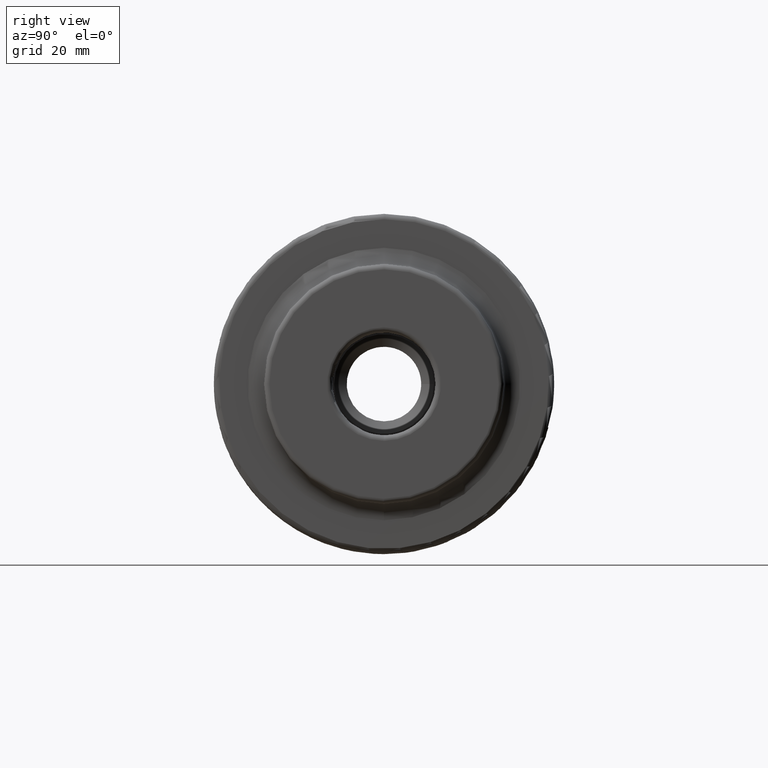
[diagram: clean part render]
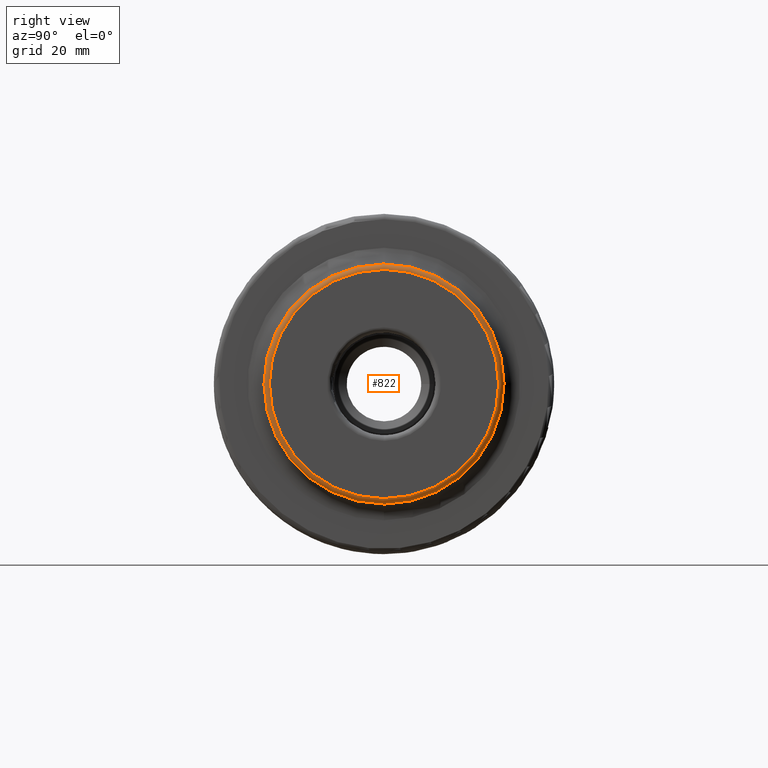
[diagram: same view with one face highlighted and labeled with its STEP entity id]
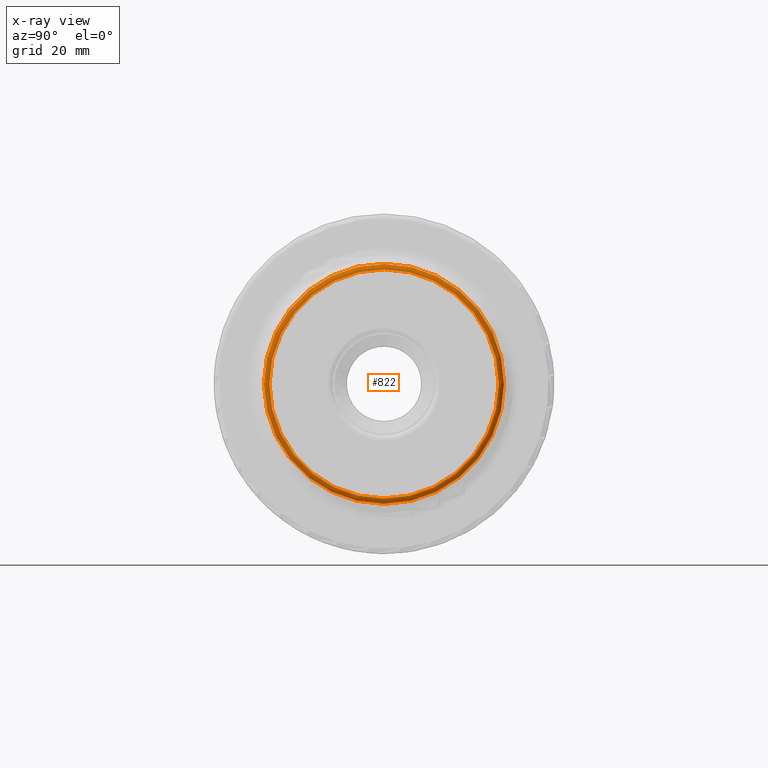
[diagram: x-ray of the same camera — body ghosted, the highlighted face saturated]
A machine part, right view. The second image highlights one B-rep face of the part: STEP entity #822.
The next image is the same camera in x-ray: the body ghosted, the highlighted face saturated — about 0% of this face is hidden behind the body in this view.
In plain terms, the highlighted toroidal blend (fillet) surface has major radius 21.225 mm and minor (blend) radius 1 mm.
Its self-contained STEP definition (entity closure, byte-faithful):
#37=TOROIDAL_SURFACE('',#899,21.225,1.);
#84=FACE_OUTER_BOUND('',#135,.T.);
#135=EDGE_LOOP('',(#561,#562,#563,#564,#565));
#284=CIRCLE('',#900,22.225);
#285=CIRCLE('',#901,1.);
#286=CIRCLE('',#902,21.225);
#287=CIRCLE('',#903,22.225);
#347=VERTEX_POINT('',#1334);
#348=VERTEX_POINT('',#1335);
#349=VERTEX_POINT('',#1337);
#432=EDGE_CURVE('',#347,#348,#284,.T.);
#433=EDGE_CURVE('',#348,#349,#285,.T.);
#434=EDGE_CURVE('',#349,#349,#286,.T.);
#435=EDGE_CURVE('',#348,#347,#287,.T.);
#561=ORIENTED_EDGE('',*,*,#432,.T.);
#562=ORIENTED_EDGE('',*,*,#433,.T.);
#563=ORIENTED_EDGE('',*,*,#434,.T.);
#564=ORIENTED_EDGE('',*,*,#433,.F.);
#565=ORIENTED_EDGE('',*,*,#435,.T.);
#822=ADVANCED_FACE('',(#84),#37,.T.);
#899=AXIS2_PLACEMENT_3D('',#1333,#1021,#1022);
#900=AXIS2_PLACEMENT_3D('',#1336,#1023,#1024);
#901=AXIS2_PLACEMENT_3D('',#1338,#1025,#1026);
#902=AXIS2_PLACEMENT_3D('',#1339,#1027,#1028);
#903=AXIS2_PLACEMENT_3D('',#1340,#1029,#1030);
#1021=DIRECTION('center_axis',(-1.,0.,0.));
#1022=DIRECTION('ref_axis',(0.,0.,1.));
#1023=DIRECTION('center_axis',(1.,0.,0.));
#1024=DIRECTION('ref_axis',(0.,1.,6.12323399573677E-17));
#1025=DIRECTION('center_axis',(0.,-1.,1.22464679914735E-16));
#1026=DIRECTION('ref_axis',(0.,-1.22464679914735E-16,-1.));
#1027=DIRECTION('center_axis',(-1.,0.,0.));
#1028=DIRECTION('ref_axis',(0.,1.,6.12323399573677E-17));
#1029=DIRECTION('center_axis',(1.,0.,0.));
#1030=DIRECTION('ref_axis',(0.,1.,6.12323399573677E-17));
#1333=CARTESIAN_POINT('Origin',(35.58,0.,0.));
#1334=CARTESIAN_POINT('',(35.58,22.225,-2.72177751110499E-15));
#1335=CARTESIAN_POINT('',(35.58,-2.72177751110499E-15,-22.225));
#1336=CARTESIAN_POINT('Origin',(35.58,0.,0.));
#1337=CARTESIAN_POINT('',(36.58,-2.59931283119026E-15,-21.225));
#1338=CARTESIAN_POINT('Origin',(35.58,-2.59931283119026E-15,-21.225));
#1339=CARTESIAN_POINT('Origin',(36.58,0.,0.));
#1340=CARTESIAN_POINT('Origin',(35.58,0.,0.));